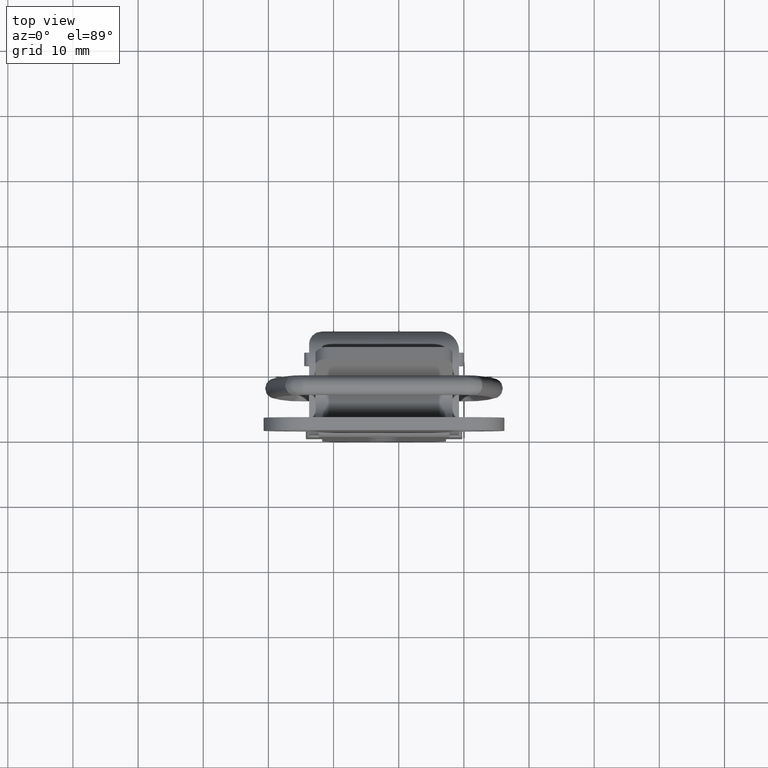
[diagram: clean part render]
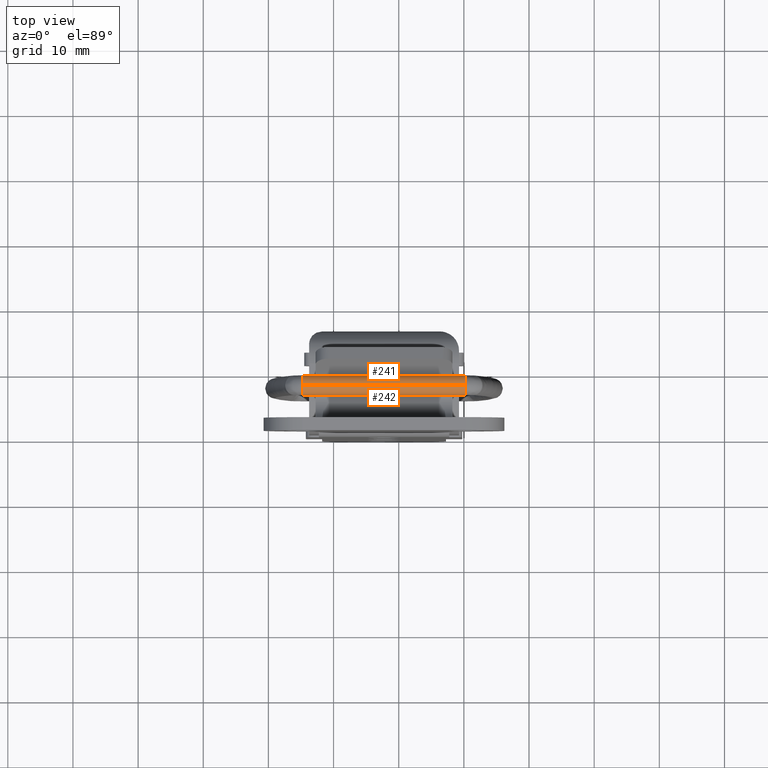
[diagram: same view with one multi-face feature highlighted, each face labeled with its STEP entity id]
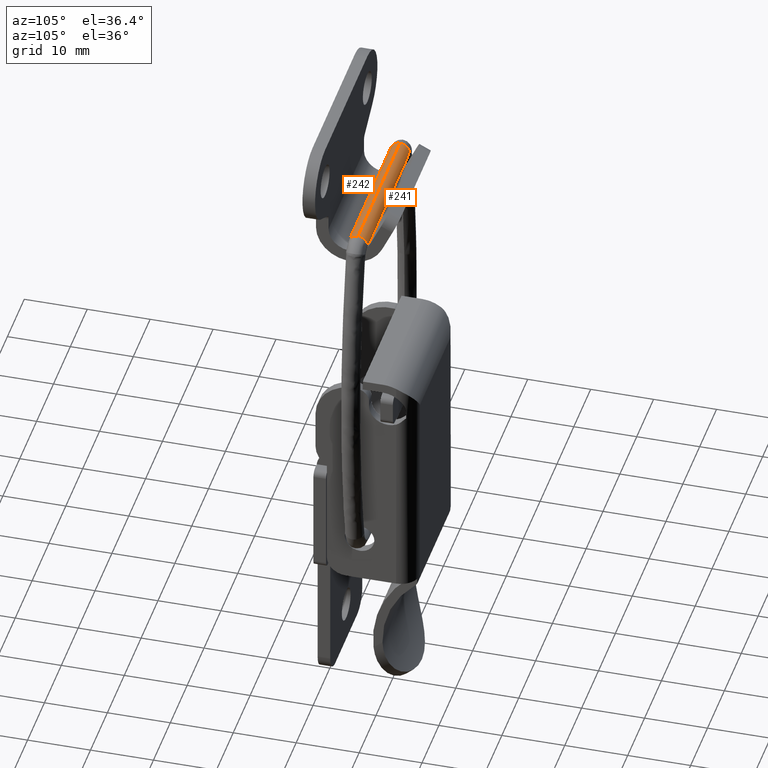
[diagram: same view with one multi-face feature highlighted, each face labeled with its STEP entity id]
A machine part, top view. The highlighted faces form ONE feature: a constant-radius fillet chain: 2 tangent blend faces with common blend radius 1.5 mm. The faces share edges in the B-rep.
A second angle (auxiliary view) of the same feature is appended — it is thin or edge-on in the first view.
Their STEP definitions:
[1] entity #242 (Cylinder):
#242=ADVANCED_FACE('',(#893),#892,.T.);
#892=CYLINDRICAL_SURFACE('',#2309,1.50000000000E+00);
#893=FACE_OUTER_BOUND('',#2310,.T.);
#2306=CARTESIAN_POINT('',(1.24292208562E+01,1.50000000000E+00,0.00000000000E+00));
#2307=DIRECTION('',(1.00000000000E+00,-0.00000000000E+00,-0.00000000000E+00));
#2308=DIRECTION('',(-0.00000000000E+00,-0.00000000000E+00,-1.00000000000E+00));
#2309=AXIS2_PLACEMENT_3D('',#2306,#2307,#2308);
#2310=EDGE_LOOP('',(#3030,#3031,#3032,#3033,#3034,#3035,#3036,#3037));
#3030=ORIENTED_EDGE('',*,*,#3586,.T.);
#3031=ORIENTED_EDGE('',*,*,#3654,.F.);
#3032=ORIENTED_EDGE('',*,*,#3589,.F.);
#3033=ORIENTED_EDGE('',*,*,#3666,.T.);
#3034=ORIENTED_EDGE('',*,*,#3656,.T.);
#3035=ORIENTED_EDGE('',*,*,#3641,.F.);
#3036=ORIENTED_EDGE('',*,*,#3635,.T.);
#3037=ORIENTED_EDGE('',*,*,#3667,.F.);
#3586=EDGE_CURVE('',#4339,#4332,#4340,.T.);
#3589=EDGE_CURVE('',#4359,#4360,#4361,.T.);
#3635=EDGE_CURVE('',#4640,#4667,#4674,.T.);
#3641=EDGE_CURVE('',#4640,#4706,#4713,.T.);
#3654=EDGE_CURVE('',#4360,#4332,#4794,.T.);
#3656=EDGE_CURVE('',#4806,#4706,#4807,.T.);
#3666=EDGE_CURVE('',#4359,#4806,#4867,.T.);
#3667=EDGE_CURVE('',#4339,#4667,#4873,.T.);
#4332=VERTEX_POINT('',#6764);
#4339=VERTEX_POINT('',#6769);
#4340=CIRCLE('',#6773,1.50000000000E+00);
#4359=VERTEX_POINT('',#6783);
#4360=VERTEX_POINT('',#6784);
#4361=CIRCLE('',#6788,1.50000000000E+00);
#4640=VERTEX_POINT('',#6987);
#4667=VERTEX_POINT('',#7006);
#4674=CIRCLE('',#7014,1.50000000000E+00);
#4706=VERTEX_POINT('',#7041);
#4713=LINE('',#7046,#7047);
#4794=LINE('',#7095,#7096);
#4806=VERTEX_POINT('',#7102);
#4807=CIRCLE('',#7106,1.50000000000E+00);
#4867=(BOUNDED_CURVE() B_SPLINE_CURVE(1,(#7159,#7160),.UNSPECIFIED.,.F.,.F.) B_SPLINE_CURVE_WITH_KNOTS((2,2),(1.10622532667E-01,8.89377468053E-01),.UNSPECIFIED.) CURVE() GEOMETRIC_REPRESENTATION_ITEM() RATIONAL_B_SPLINE_CURVE((1.00000000000E+00,1.00000000000E+00)) REPRESENTATION_ITEM('') );
#4873=(BOUNDED_CURVE() B_SPLINE_CURVE(1,(#7161,#7162),.UNSPECIFIED.,.F.,.F.) B_SPLINE_CURVE_WITH_KNOTS((2,2),(8.33333333333E-02,9.16666666667E-01),.UNSPECIFIED.) CURVE() GEOMETRIC_REPRESENTATION_ITEM() RATIONAL_B_SPLINE_CURVE((7.50000000000E-01,7.50000000000E-01)) REPRESENTATION_ITEM('') );
#6764=CARTESIAN_POINT('',(-1.24292208562E+01,0.00000000000E+00,0.00000000000E+00));
#6769=CARTESIAN_POINT('',(-1.24292208562E+01,1.50000010813E+00,1.50000000000E+00));
#6770=CARTESIAN_POINT('',(-1.24292208562E+01,1.50000000000E+00,0.00000000000E+00));
#6771=DIRECTION('',(1.00000000000E+00,0.00000000000E+00,-0.00000000000E+00));
#6772=DIRECTION('',(-0.00000000000E+00,1.00000000000E+00,-1.83690953073E-16));
#6773=AXIS2_PLACEMENT_3D('',#6770,#6771,#6772);
#6783=CARTESIAN_POINT('',(-1.16151805258E+01,1.50000000080E+00,-1.50000000000E+00));
#6784=CARTESIAN_POINT('',(-1.16151805258E+01,0.00000000000E+00,0.00000000000E+00));
#6785=CARTESIAN_POINT('',(-1.16151805258E+01,1.50000000000E+00,0.00000000000E+00));
#6786=DIRECTION('',(-1.00000000000E+00,0.00000000000E+00,0.00000000000E+00));
#6787=DIRECTION('',(0.00000000000E+00,1.00000000000E+00,1.83690953073E-16));
#6788=AXIS2_PLACEMENT_3D('',#6785,#6786,#6787);
#6987=CARTESIAN_POINT('',(1.24292208562E+01,0.00000000000E+00,0.00000000000E+00));
#7006=CARTESIAN_POINT('',(1.24292208562E+01,1.49999989267E+00,1.50000000000E+00));
#7011=CARTESIAN_POINT('',(1.24292208562E+01,1.50000000000E+00,0.00000000000E+00));
#7012=DIRECTION('',(-1.00000000000E+00,0.00000000000E+00,0.00000000000E+00));
#7013=DIRECTION('',(-0.00000000000E+00,-0.00000000000E+00,-1.00000000000E+00));
#7014=AXIS2_PLACEMENT_3D('',#7011,#7012,#7013);
#7041=CARTESIAN_POINT('',(1.16151805258E+01,0.00000000000E+00,0.00000000000E+00));
#7046=CARTESIAN_POINT('',(1.24292208562E+01,0.00000000000E+00,0.00000000000E+00));
#7047=VECTOR('',#7048,8.14040330360E-01);
#7048=DIRECTION('',(-1.00000000000E+00,0.00000000000E+00,0.00000000000E+00));
#7095=CARTESIAN_POINT('',(-1.16151805258E+01,0.00000000000E+00,0.00000000000E+00));
#7096=VECTOR('',#7097,8.14040330360E-01);
#7097=DIRECTION('',(-1.00000000000E+00,0.00000000000E+00,0.00000000000E+00));
#7102=CARTESIAN_POINT('',(1.16151805258E+01,1.50000000080E+00,-1.50000000000E+00));
#7103=CARTESIAN_POINT('',(1.16151805258E+01,1.50000000000E+00,0.00000000000E+00));
#7104=DIRECTION('',(-1.00000000000E+00,0.00000000000E+00,0.00000000000E+00));
#7105=DIRECTION('',(0.00000000000E+00,1.00000000000E+00,1.83690953073E-16));
#7106=AXIS2_PLACEMENT_3D('',#7103,#7104,#7105);
#7159=CARTESIAN_POINT('',(-1.16151804910E+01,1.50000000000E+00,-1.50000000000E+00));
#7160=CARTESIAN_POINT('',(1.16151805125E+01,1.50000000000E+00,-1.50000000000E+00));
#7161=CARTESIAN_POINT('',(-1.24292208562E+01,1.50000000000E+00,1.50000000000E+00));
#7162=CARTESIAN_POINT('',(1.24292208562E+01,1.50000000000E+00,1.50000000000E+00));
[2] entity #241 (Cylinder):
#241=ADVANCED_FACE('',(#883),#882,.T.);
#882=CYLINDRICAL_SURFACE('',#2304,1.50000000000E+00);
#883=FACE_OUTER_BOUND('',#2305,.T.);
#2301=CARTESIAN_POINT('',(1.24292208562E+01,1.50000000000E+00,0.00000000000E+00));
#2302=DIRECTION('',(1.00000000000E+00,-0.00000000000E+00,-0.00000000000E+00));
#2303=DIRECTION('',(-0.00000000000E+00,-0.00000000000E+00,-1.00000000000E+00));
#2304=AXIS2_PLACEMENT_3D('',#2301,#2302,#2303);
#2305=EDGE_LOOP('',(#3022,#3023,#3024,#3025,#3026,#3027,#3028,#3029));
#3022=ORIENTED_EDGE('',*,*,#3634,.T.);
#3023=ORIENTED_EDGE('',*,*,#3639,.F.);
#3024=ORIENTED_EDGE('',*,*,#3665,.T.);
#3025=ORIENTED_EDGE('',*,*,#3666,.F.);
#3026=ORIENTED_EDGE('',*,*,#3661,.F.);
#3027=ORIENTED_EDGE('',*,*,#3644,.F.);
#3028=ORIENTED_EDGE('',*,*,#3587,.T.);
#3029=ORIENTED_EDGE('',*,*,#3667,.T.);
#3587=EDGE_CURVE('',#4346,#4339,#4347,.T.);
#3634=EDGE_CURVE('',#4667,#4660,#4668,.T.);
#3639=EDGE_CURVE('',#4693,#4660,#4700,.T.);
#3644=EDGE_CURVE('',#4346,#4719,#4733,.T.);
#3661=EDGE_CURVE('',#4719,#4359,#4837,.T.);
#3665=EDGE_CURVE('',#4693,#4806,#4861,.T.);
#3666=EDGE_CURVE('',#4359,#4806,#4867,.T.);
#3667=EDGE_CURVE('',#4339,#4667,#4873,.T.);
#4339=VERTEX_POINT('',#6769);
#4346=VERTEX_POINT('',#6774);
#4347=CIRCLE('',#6778,1.50000000000E+00);
#4359=VERTEX_POINT('',#6783);
#4660=VERTEX_POINT('',#7001);
#4667=VERTEX_POINT('',#7006);
#4668=CIRCLE('',#7010,1.50000000000E+00);
#4693=VERTEX_POINT('',#7033);
#4700=LINE('',#7038,#7039);
#4719=VERTEX_POINT('',#7049);
#4733=LINE('',#7059,#7060);
#4806=VERTEX_POINT('',#7102);
#4837=CIRCLE('',#7134,1.50000000000E+00);
#4861=CIRCLE('',#7158,1.50000000000E+00);
#4867=(BOUNDED_CURVE() B_SPLINE_CURVE(1,(#7159,#7160),.UNSPECIFIED.,.F.,.F.) B_SPLINE_CURVE_WITH_KNOTS((2,2),(1.10622532667E-01,8.89377468053E-01),.UNSPECIFIED.) CURVE() GEOMETRIC_REPRESENTATION_ITEM() RATIONAL_B_SPLINE_CURVE((1.00000000000E+00,1.00000000000E+00)) REPRESENTATION_ITEM('') );
#4873=(BOUNDED_CURVE() B_SPLINE_CURVE(1,(#7161,#7162),.UNSPECIFIED.,.F.,.F.) B_SPLINE_CURVE_WITH_KNOTS((2,2),(8.33333333333E-02,9.16666666667E-01),.UNSPECIFIED.) CURVE() GEOMETRIC_REPRESENTATION_ITEM() RATIONAL_B_SPLINE_CURVE((7.50000000000E-01,7.50000000000E-01)) REPRESENTATION_ITEM('') );
#6769=CARTESIAN_POINT('',(-1.24292208562E+01,1.50000010813E+00,1.50000000000E+00));
#6774=CARTESIAN_POINT('',(-1.24292208562E+01,3.00000000000E+00,0.00000000000E+00));
#6775=CARTESIAN_POINT('',(-1.24292208562E+01,1.50000000000E+00,0.00000000000E+00));
#6776=DIRECTION('',(1.00000000000E+00,0.00000000000E+00,-0.00000000000E+00));
#6777=DIRECTION('',(-0.00000000000E+00,1.00000000000E+00,-1.83690953073E-16));
#6778=AXIS2_PLACEMENT_3D('',#6775,#6776,#6777);
#6783=CARTESIAN_POINT('',(-1.16151805258E+01,1.50000000080E+00,-1.50000000000E+00));
#7001=CARTESIAN_POINT('',(1.24292208562E+01,3.00000000000E+00,0.00000000000E+00));
#7006=CARTESIAN_POINT('',(1.24292208562E+01,1.49999989267E+00,1.50000000000E+00));
#7007=CARTESIAN_POINT('',(1.24292208562E+01,1.50000000000E+00,0.00000000000E+00));
#7008=DIRECTION('',(-1.00000000000E+00,0.00000000000E+00,0.00000000000E+00));
#7009=DIRECTION('',(-0.00000000000E+00,-0.00000000000E+00,-1.00000000000E+00));
#7010=AXIS2_PLACEMENT_3D('',#7007,#7008,#7009);
#7033=CARTESIAN_POINT('',(1.16151805258E+01,3.00000000000E+00,0.00000000000E+00));
#7038=CARTESIAN_POINT('',(1.16151805258E+01,3.00000000000E+00,0.00000000000E+00));
#7039=VECTOR('',#7040,8.14040330360E-01);
#7040=DIRECTION('',(1.00000000000E+00,0.00000000000E+00,0.00000000000E+00));
#7049=CARTESIAN_POINT('',(-1.16151805258E+01,3.00000000000E+00,0.00000000000E+00));
#7059=CARTESIAN_POINT('',(-1.24292208562E+01,3.00000000000E+00,0.00000000000E+00));
#7060=VECTOR('',#7061,8.14040330360E-01);
#7061=DIRECTION('',(1.00000000000E+00,0.00000000000E+00,0.00000000000E+00));
#7102=CARTESIAN_POINT('',(1.16151805258E+01,1.50000000080E+00,-1.50000000000E+00));
#7131=CARTESIAN_POINT('',(-1.16151805258E+01,1.50000000000E+00,0.00000000000E+00));
#7132=DIRECTION('',(-1.00000000000E+00,0.00000000000E+00,0.00000000000E+00));
#7133=DIRECTION('',(0.00000000000E+00,1.00000000000E+00,1.83690953073E-16));
#7134=AXIS2_PLACEMENT_3D('',#7131,#7132,#7133);
#7155=CARTESIAN_POINT('',(1.16151805258E+01,1.50000000000E+00,0.00000000000E+00));
#7156=DIRECTION('',(-1.00000000000E+00,0.00000000000E+00,0.00000000000E+00));
#7157=DIRECTION('',(0.00000000000E+00,1.00000000000E+00,1.83690953073E-16));
#7158=AXIS2_PLACEMENT_3D('',#7155,#7156,#7157);
#7159=CARTESIAN_POINT('',(-1.16151804910E+01,1.50000000000E+00,-1.50000000000E+00));
#7160=CARTESIAN_POINT('',(1.16151805125E+01,1.50000000000E+00,-1.50000000000E+00));
#7161=CARTESIAN_POINT('',(-1.24292208562E+01,1.50000000000E+00,1.50000000000E+00));
#7162=CARTESIAN_POINT('',(1.24292208562E+01,1.50000000000E+00,1.50000000000E+00));